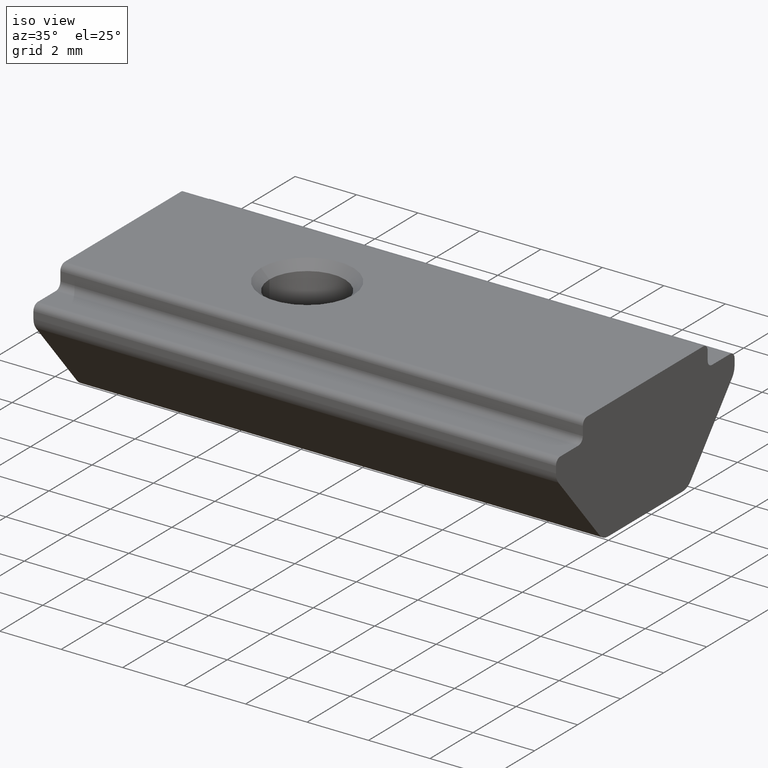
[diagram: clean part render]
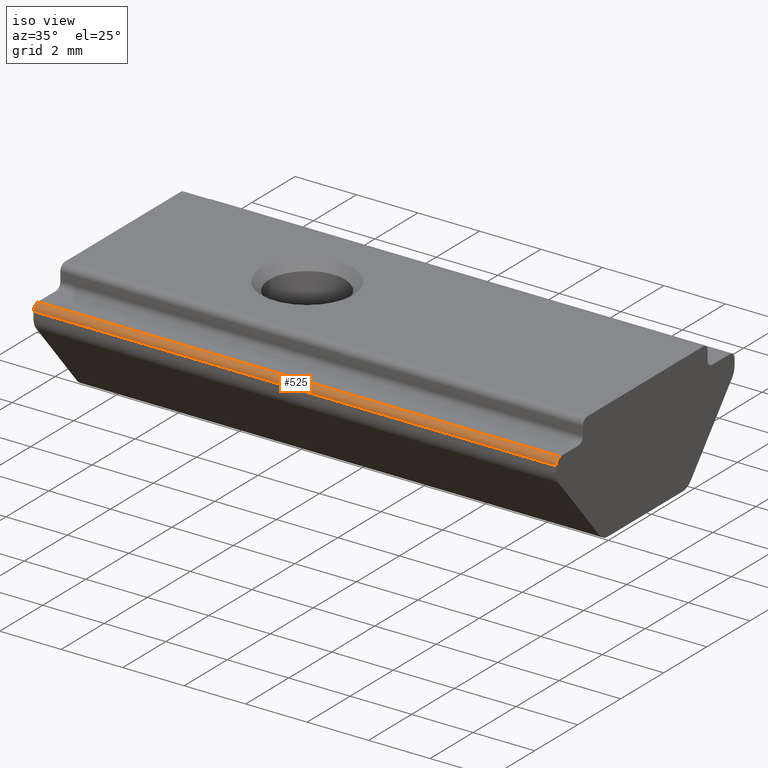
[diagram: same view with one face highlighted and labeled with its STEP entity id]
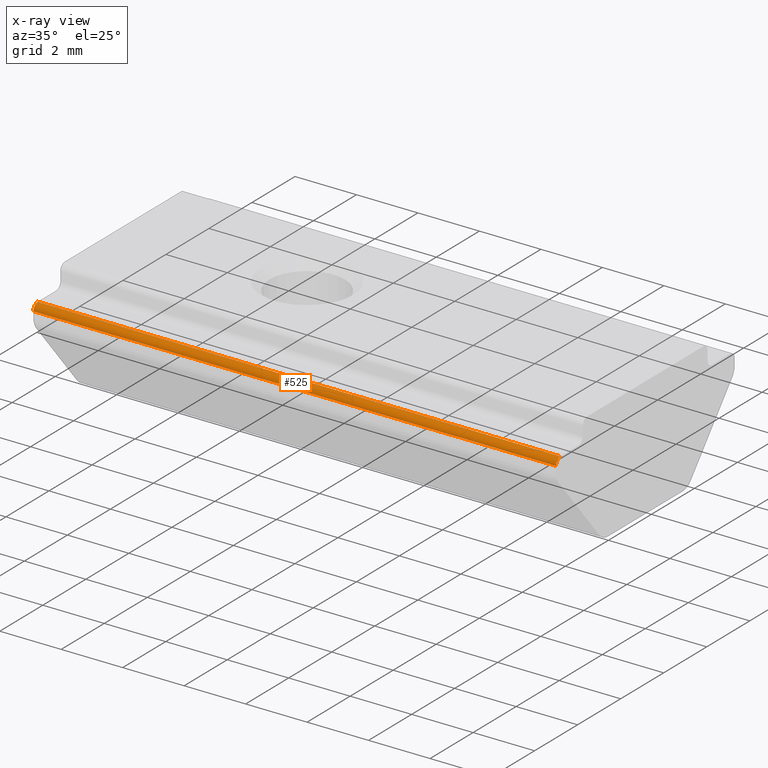
[diagram: x-ray of the same camera — body ghosted, the highlighted face saturated]
A machine part, iso view. The second image highlights one B-rep face of the part: STEP entity #525.
The next image is the same camera in x-ray: the body ghosted, the highlighted face saturated — about 0% of this face is hidden behind the body in this view.
In plain terms, the highlighted cylindrical surface (edge-blend (fillet) strip) has radius 0.2 mm, axis along (1, 0, 0).
Its self-contained STEP definition (entity closure, byte-faithful):
#23=CYLINDRICAL_SURFACE('',#577,0.2);
#41=FACE_OUTER_BOUND('',#70,.T.);
#70=EDGE_LOOP('',(#381,#382,#383,#384));
#105=LINE('',#849,#151);
#107=LINE('',#855,#153);
#151=VECTOR('',#668,1000.);
#153=VECTOR('',#674,1000.);
#194=CIRCLE('',#578,0.2);
#195=CIRCLE('',#579,0.2);
#233=VERTEX_POINT('',#846);
#234=VERTEX_POINT('',#848);
#235=VERTEX_POINT('',#852);
#236=VERTEX_POINT('',#854);
#293=EDGE_CURVE('',#234,#233,#105,.T.);
#295=EDGE_CURVE('',#233,#235,#194,.T.);
#296=EDGE_CURVE('',#236,#235,#107,.T.);
#297=EDGE_CURVE('',#234,#236,#195,.T.);
#381=ORIENTED_EDGE('',*,*,#295,.T.);
#382=ORIENTED_EDGE('',*,*,#296,.F.);
#383=ORIENTED_EDGE('',*,*,#297,.F.);
#384=ORIENTED_EDGE('',*,*,#293,.T.);
#525=ADVANCED_FACE('',(#41),#23,.T.);
#577=AXIS2_PLACEMENT_3D('',#851,#670,#671);
#578=AXIS2_PLACEMENT_3D('',#853,#672,#673);
#579=AXIS2_PLACEMENT_3D('',#856,#675,#676);
#668=DIRECTION('',(1.,0.,2.22044604925031E-16));
#670=DIRECTION('center_axis',(1.,0.,2.22044604925031E-16));
#671=DIRECTION('ref_axis',(2.22044604925031E-16,0.,-1.));
#672=DIRECTION('center_axis',(-1.,0.,-2.22044604925031E-16));
#673=DIRECTION('ref_axis',(-2.22044604925031E-16,0.,1.));
#674=DIRECTION('',(1.,0.,2.22044604925031E-16));
#675=DIRECTION('center_axis',(-1.,0.,-2.22044604925031E-16));
#676=DIRECTION('ref_axis',(-2.22044604925031E-16,0.,1.));
#846=CARTESIAN_POINT('',(-0.799999999999997,-4.15,-4.70000000000001));
#848=CARTESIAN_POINT('',(-17.8,-4.15,-4.70000000000001));
#849=CARTESIAN_POINT('',(-17.8,-4.15,-4.70000000000001));
#851=CARTESIAN_POINT('Origin',(-17.8,-3.95,-4.70000000000001));
#852=CARTESIAN_POINT('',(-0.799999999999997,-3.95,-4.50000000000001));
#853=CARTESIAN_POINT('Origin',(-0.799999999999997,-3.95,-4.70000000000001));
#854=CARTESIAN_POINT('',(-17.8,-3.95,-4.50000000000001));
#855=CARTESIAN_POINT('',(-17.8,-3.95,-4.50000000000001));
#856=CARTESIAN_POINT('Origin',(-17.8,-3.95,-4.70000000000001));